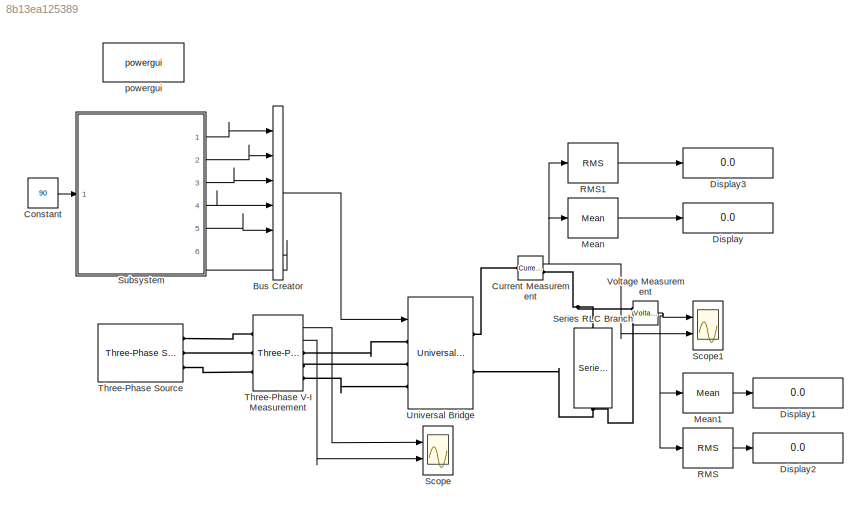
MODEL slx_8b13ea125389
KIND model
CONFIG AbsTol = auto
CONFIG EnableMultiTasking = off
CONFIG FixedStep = auto
CONFIG MaxStep = auto
CONFIG MinStep = auto
CONFIG RelTol = 1e-3
CONFIG SampleTimeConstraint = Unconstrained
CONFIG SolverName = VariableStepAuto
CONFIG StartTime = 0.0
CONFIG StopTime = 0.1
BLOCK [BusCreator] Bus Creator
  DisplayOption = bar
  InheritFromInputs = on
  Inputs = 6
  Ports = [6, 1]
BLOCK [Constant] Constant
  Value = 90
BLOCK [Reference] Current Measurement  REF=spsCurrentMeasurementLib/Current Measurement
  Ports = [0, 1, 0, 0, 0, 1, 1]
  SourceBlock = spsCurrentMeasurementLib/Current Measurement
  SourceProductBaseCode = PS
  SourceType = Current Measurement
  UserDataPersistent = on
BLOCK [Display] Display
  Decimation = 1
  Ports = [1]
BLOCK [Display] Display1
  Decimation = 1
  Ports = [1]
BLOCK [Display] Display2
  Decimation = 1
  Ports = [1]
BLOCK [Display] Display3
  Decimation = 1
  Ports = [1]
BLOCK [Reference] Mean  REF=spsMeanLib/Mean
  Ports = [1, 1]
  SourceBlock = spsMeanLib/Mean
  SourceProductBaseCode = PS
  SourceType = Mean
BLOCK [Reference] Mean1  REF=spsMeanLib/Mean
  Ports = [1, 1]
  SourceBlock = spsMeanLib/Mean
  SourceProductBaseCode = PS
  SourceType = Mean
BLOCK [Reference] RMS  REF=spsRMSLib/RMS
  Ports = [1, 1]
  SourceBlock = spsRMSLib/RMS
  SourceProductBaseCode = PS
  SourceType = RMS
BLOCK [Reference] RMS1  REF=spsRMSLib/RMS
  Ports = [1, 1]
  SourceBlock = spsRMSLib/RMS
  SourceProductBaseCode = PS
  SourceType = RMS
BLOCK [Scope] Scope
  Floating = off
  NumInputPorts = 2
  Ports = [2]
  ScopeSpecificationString = Simulink.scopes.TimeScopeBlockCfg('CurrentConfiguration', extmgr.ConfigurationSet(extmgr.Configuration('Core','General UI',true,'FigureColor',[1 1 1]),extmgr.Configuration('Core','Source UI',true),extmgr.Configuration('Sources','WiredSimulink',true),extmgr.Configuration('Visuals','Time Domain',true,'SerializedDisplays',{struct('MinYLimReal','-108.18734','MaxYLimReal','108.18734','YLabelReal','','M...<+2501ch>
BLOCK [Scope] Scope1
  Floating = off
  NumInputPorts = 2
  Ports = [2]
  ScopeSpecificationString = Simulink.scopes.TimeScopeBlockCfg('CurrentConfiguration', extmgr.ConfigurationSet(extmgr.Configuration('Core','General UI',true,'FigureColor',[1 1 1]),extmgr.Configuration('Core','Source UI',true),extmgr.Configuration('Sources','WiredSimulink',true,'DataLoggingVariableName','ScopeData1'),extmgr.Configuration('Visuals','Time Domain',true,'SerializedDisplays',{struct('MinYLimReal','-9.36911','MaxYLi...<+2312ch>
BLOCK [Reference] Series RLC Branch  REF=spsSeriesRLCBranchLib/Series RLC Branch
  NameLocation = left
  Ports = [0, 0, 0, 0, 0, 1, 1]
  SourceBlock = spsSeriesRLCBranchLib/Series RLC Branch
  SourceProductBaseCode = PS
  SourceType = Series RLC Branch
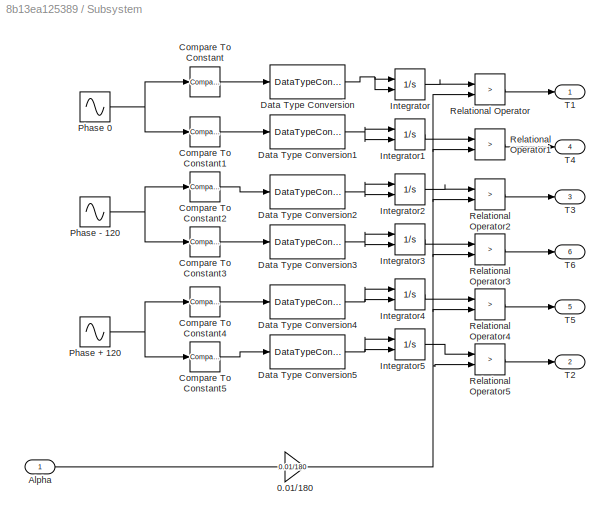
BLOCK [SubSystem] Subsystem
  PortSchema = {"entries":[{"content":{"sides":[{"content":{"connectorIds":["In1"]},"type":"ConnectorPlacement.EquallySpacedRectSide","uuid":"10fb88a2-05de-4867-bc1f-57d10cf2a1e9"},{"content":{"connectorIds":["Out1","Out2","Out3","Out4","Out5"],"side":"RIGHT"},"type":"ConnectorPlacement.EquallySpacedRectSide","uuid":"f5fd5476-27cd-43ce-b7da-9271bf09a187"},{"content":{"connectorIds":[],"side":"TOP"},"type":"Conne...<+418ch>
  Ports = [1, 6]
  RequestExecContextInheritance = off
BLOCK [Gain] Subsystem/0.01//180 
  Gain = 0.01/180
BLOCK [Inport] Subsystem/Alpha
BLOCK [Reference] Subsystem/Compare To Constant  REF=simulink/Logic and Bit
Operations/Compare
To Constant
  Ports = [1, 1]
  SourceBlock = simulink/Logic and Bit\nOperations/Compare\nTo Constant
  SourceProductBaseCode = SL
  SourceType = Compare To Constant
BLOCK [Reference] Subsystem/Compare To Constant1  REF=simulink/Logic and Bit
Operations/Compare
To Constant
  Ports = [1, 1]
  SourceBlock = simulink/Logic and Bit\nOperations/Compare\nTo Constant
  SourceProductBaseCode = SL
  SourceType = Compare To Constant
BLOCK [Reference] Subsystem/Compare To Constant2  REF=simulink/Logic and Bit
Operations/Compare
To Constant
  Ports = [1, 1]
  SourceBlock = simulink/Logic and Bit\nOperations/Compare\nTo Constant
  SourceProductBaseCode = SL
  SourceType = Compare To Constant
BLOCK [Reference] Subsystem/Compare To Constant3  REF=simulink/Logic and Bit
Operations/Compare
To Constant
  Ports = [1, 1]
  SourceBlock = simulink/Logic and Bit\nOperations/Compare\nTo Constant
  SourceProductBaseCode = SL
  SourceType = Compare To Constant
BLOCK [Reference] Subsystem/Compare To Constant4  REF=simulink/Logic and Bit
Operations/Compare
To Constant
  Ports = [1, 1]
  SourceBlock = simulink/Logic and Bit\nOperations/Compare\nTo Constant
  SourceProductBaseCode = SL
  SourceType = Compare To Constant
BLOCK [Reference] Subsystem/Compare To Constant5  REF=simulink/Logic and Bit
Operations/Compare
To Constant
  Ports = [1, 1]
  SourceBlock = simulink/Logic and Bit\nOperations/Compare\nTo Constant
  SourceProductBaseCode = SL
  SourceType = Compare To Constant
BLOCK [DataTypeConversion] Subsystem/Data Type Conversion
  OutDataTypeStr = double
  RndMeth = Floor
  SaturateOnIntegerOverflow = off
BLOCK [DataTypeConversion] Subsystem/Data Type Conversion1
  OutDataTypeStr = double
  RndMeth = Floor
  SaturateOnIntegerOverflow = off
BLOCK [DataTypeConversion] Subsystem/Data Type Conversion2
  OutDataTypeStr = double
  RndMeth = Floor
  SaturateOnIntegerOverflow = off
BLOCK [DataTypeConversion] Subsystem/Data Type Conversion3
  OutDataTypeStr = double
  RndMeth = Floor
  SaturateOnIntegerOverflow = off
BLOCK [DataTypeConversion] Subsystem/Data Type Conversion4
  OutDataTypeStr = double
  RndMeth = Floor
  SaturateOnIntegerOverflow = off
BLOCK [DataTypeConversion] Subsystem/Data Type Conversion5
  OutDataTypeStr = double
  RndMeth = Floor
  SaturateOnIntegerOverflow = off
BLOCK [Integrator] Subsystem/Integrator
  ExternalReset = falling
  Ports = [2, 1]
BLOCK [Integrator] Subsystem/Integrator1
  ExternalReset = falling
  Ports = [2, 1]
BLOCK [Integrator] Subsystem/Integrator2
  ExternalReset = falling
  Ports = [2, 1]
BLOCK [Integrator] Subsystem/Integrator3
  ExternalReset = falling
  Ports = [2, 1]
BLOCK [Integrator] Subsystem/Integrator4
  ExternalReset = falling
  Ports = [2, 1]
BLOCK [Integrator] Subsystem/Integrator5
  ExternalReset = falling
  Ports = [2, 1]
BLOCK [Sin] Subsystem/Phase + 120
  Frequency = 100*pi
  Phase = 120*(pi/180)
  Ports = [0, 1]
  SampleTime = 0
BLOCK [Sin] Subsystem/Phase - 120
  Frequency = 100*pi
  Phase = -120*(pi/180)
  Ports = [0, 1]
  SampleTime = 0
BLOCK [Sin] Subsystem/Phase 0
  Frequency = 100*pi
  Ports = [0, 1]
  SampleTime = 0
BLOCK [RelationalOperator] Subsystem/Relational Operator
  InputSameDT = off
  Operator = >
  OutDataTypeStr = boolean
  Ports = [2, 1]
  RndMeth = Simplest
BLOCK [RelationalOperator] Subsystem/Relational Operator1
  InputSameDT = off
  Operator = >
  OutDataTypeStr = boolean
  Ports = [2, 1]
  RndMeth = Simplest
BLOCK [RelationalOperator] Subsystem/Relational Operator2
  InputSameDT = off
  Operator = >
  OutDataTypeStr = boolean
  Ports = [2, 1]
  RndMeth = Simplest
BLOCK [RelationalOperator] Subsystem/Relational Operator3
  InputSameDT = off
  Operator = >
  OutDataTypeStr = boolean
  Ports = [2, 1]
  RndMeth = Simplest
BLOCK [RelationalOperator] Subsystem/Relational Operator4
  InputSameDT = off
  Operator = >
  OutDataTypeStr = boolean
  Ports = [2, 1]
  RndMeth = Simplest
BLOCK [RelationalOperator] Subsystem/Relational Operator5
  InputSameDT = off
  Operator = >
  OutDataTypeStr = boolean
  Ports = [2, 1]
  RndMeth = Simplest
BLOCK [Outport] Subsystem/T1
BLOCK [Outport] Subsystem/T2
  Port = 2
BLOCK [Outport] Subsystem/T3
  Port = 3
BLOCK [Outport] Subsystem/T4
  Port = 4
BLOCK [Outport] Subsystem/T5
  Port = 5
BLOCK [Outport] Subsystem/T6
  Port = 6
BLOCK [Reference] Three-Phase Source  REF=spsThreePhaseSourceLib/Three-Phase Source
  Ports = [0, 0, 0, 0, 0, 1, 3]
  SourceBlock = spsThreePhaseSourceLib/Three-Phase Source
  SourceProductBaseCode = PS
  SourceType = Three-Phase Source
BLOCK [Reference] Three-Phase V-I Measurement  REF=spsThreePhaseVIMeasurementLib/Three-Phase
V-I Measurement
  Ports = [0, 2, 0, 0, 0, 3, 3]
  SourceBlock = spsThreePhaseVIMeasurementLib/Three-Phase\nV-I Measurement
  SourceProductBaseCode = PS
  SourceType = Three-Phase VI Measurement
BLOCK [Reference] Universal Bridge  REF=spsUniversalBridgeLib/Universal Bridge
  Ports = [1, 0, 0, 0, 0, 3, 2]
  SourceBlock = spsUniversalBridgeLib/Universal Bridge
  SourceProductBaseCode = PS
  SourceType = Universal Bridge
BLOCK [Reference] Voltage Measurement  REF=spsVoltageMeasurementLib/Voltage Measurement
  Ports = [0, 1, 0, 0, 0, 2]
  SourceBlock = spsVoltageMeasurementLib/Voltage Measurement
  SourceProductBaseCode = PS
  SourceType = Voltage Measurement
  UserDataPersistent = on
BLOCK [Reference] powergui  REF=spspowerguiLib/powergui
  Ports = []
  Priority = 1
  SourceBlock = spspowerguiLib/powergui
  SourceProductBaseCode = PS
  SourceType = PSB option menu block
LINE Bus Creator:1 -> Universal Bridge:1
LINE Constant:1 -> Subsystem:1
NET Current Measurement:1 -> Mean:1, RMS1:1, Scope1:2
LINE Mean1:1 -> Display1:1
LINE Mean:1 -> Display:1
LINE RMS1:1 -> Display3:1
LINE RMS:1 -> Display2:1
NET Subsystem/0.01//180 :1 -> Subsystem/Relational Operator1:2, Subsystem/Relational Operator2:2, Subsystem/Relational Operator3:2, Subsystem/Relational Operator4:2, Subsystem/Relational Operator5:2, Subsystem/Relational Operator:2
LINE Subsystem/Alpha:1 -> Subsystem/0.01//180 :1
LINE Subsystem/Compare To Constant1:1 -> Subsystem/Data Type Conversion1:1
LINE Subsystem/Compare To Constant2:1 -> Subsystem/Data Type Conversion2:1
LINE Subsystem/Compare To Constant3:1 -> Subsystem/Data Type Conversion3:1
LINE Subsystem/Compare To Constant4:1 -> Subsystem/Data Type Conversion4:1
LINE Subsystem/Compare To Constant5:1 -> Subsystem/Data Type Conversion5:1
LINE Subsystem/Compare To Constant:1 -> Subsystem/Data Type Conversion:1
NET Subsystem/Data Type Conversion1:1 -> Subsystem/Integrator1:1, Subsystem/Integrator1:2
NET Subsystem/Data Type Conversion2:1 -> Subsystem/Integrator2:1, Subsystem/Integrator2:2
NET Subsystem/Data Type Conversion3:1 -> Subsystem/Integrator3:1, Subsystem/Integrator3:2
NET Subsystem/Data Type Conversion4:1 -> Subsystem/Integrator4:1, Subsystem/Integrator4:2
NET Subsystem/Data Type Conversion5:1 -> Subsystem/Integrator5:1, Subsystem/Integrator5:2
NET Subsystem/Data Type Conversion:1 -> Subsystem/Integrator:1, Subsystem/Integrator:2
LINE Subsystem/Integrator1:1 -> Subsystem/Relational Operator1:1
LINE Subsystem/Integrator2:1 -> Subsystem/Relational Operator2:1
LINE Subsystem/Integrator3:1 -> Subsystem/Relational Operator3:1
LINE Subsystem/Integrator4:1 -> Subsystem/Relational Operator4:1
LINE Subsystem/Integrator5:1 -> Subsystem/Relational Operator5:1
LINE Subsystem/Integrator:1 -> Subsystem/Relational Operator:1
NET Subsystem/Phase + 120:1 -> Subsystem/Compare To Constant4:1, Subsystem/Compare To Constant5:1
NET Subsystem/Phase - 120:1 -> Subsystem/Compare To Constant2:1, Subsystem/Compare To Constant3:1
NET Subsystem/Phase 0:1 -> Subsystem/Compare To Constant1:1, Subsystem/Compare To Constant:1
LINE Subsystem/Relational Operator1:1 -> Subsystem/T4:1
LINE Subsystem/Relational Operator2:1 -> Subsystem/T3:1
LINE Subsystem/Relational Operator3:1 -> Subsystem/T6:1
LINE Subsystem/Relational Operator4:1 -> Subsystem/T5:1
LINE Subsystem/Relational Operator5:1 -> Subsystem/T2:1
LINE Subsystem/Relational Operator:1 -> Subsystem/T1:1
LINE Subsystem:1 -> Bus Creator:1
LINE Subsystem:2 -> Bus Creator:2
LINE Subsystem:3 -> Bus Creator:3
LINE Subsystem:4 -> Bus Creator:4
LINE Subsystem:5 -> Bus Creator:5
LINE Subsystem:6 -> Bus Creator:6
LINE Three-Phase V-I Measurement:1 -> Scope:1
LINE Three-Phase V-I Measurement:2 -> Scope:2
NET Voltage Measurement:1 -> Mean1:1, RMS:1, Scope1:1
PLINE Current Measurement:LConn1 -- Universal Bridge:RConn1
PNET net1: Current Measurement:RConn1 -- Series RLC Branch:LConn1 -- Voltage Measurement:LConn1
PNET net2: Series RLC Branch:RConn1 -- Universal Bridge:RConn2 -- Voltage Measurement:LConn2
PLINE Three-Phase Source:RConn1 -- Three-Phase V-I Measurement:LConn1
PLINE Three-Phase Source:RConn2 -- Three-Phase V-I Measurement:LConn2
PLINE Three-Phase Source:RConn3 -- Three-Phase V-I Measurement:LConn3
PLINE Three-Phase V-I Measurement:RConn1 -- Universal Bridge:LConn1
PLINE Three-Phase V-I Measurement:RConn2 -- Universal Bridge:LConn2
PLINE Three-Phase V-I Measurement:RConn3 -- Universal Bridge:LConn3
note: NET lines group one-source signal fan-out (src -> all destinations, sorted); 1:1 wires keep LINE; PNET lines group multi-terminal physical nets as a canonical sorted terminal list (undirected conserving connections); 2-terminal nets keep the pairwise PLINE form
